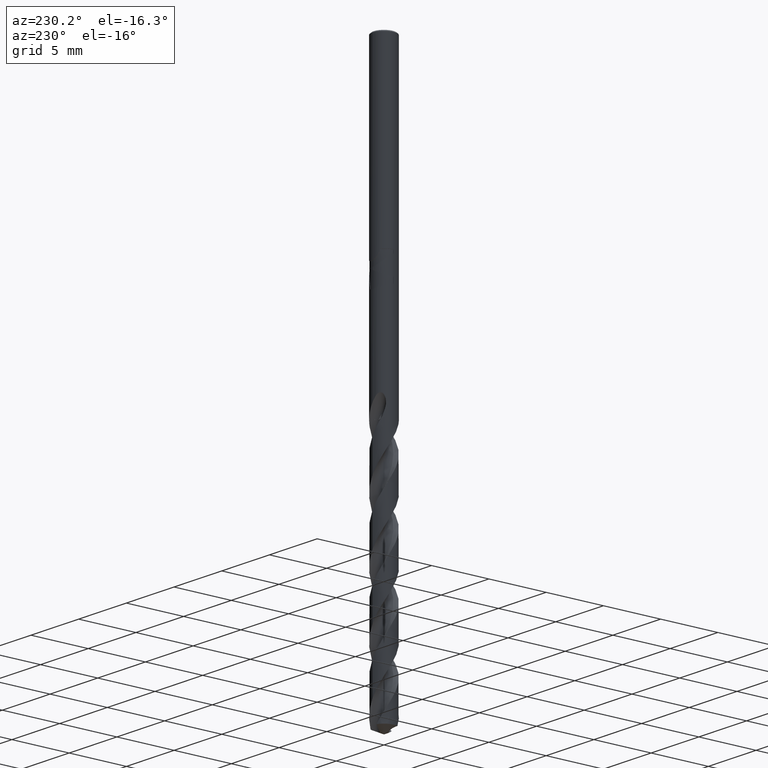
[diagram: clean part render]
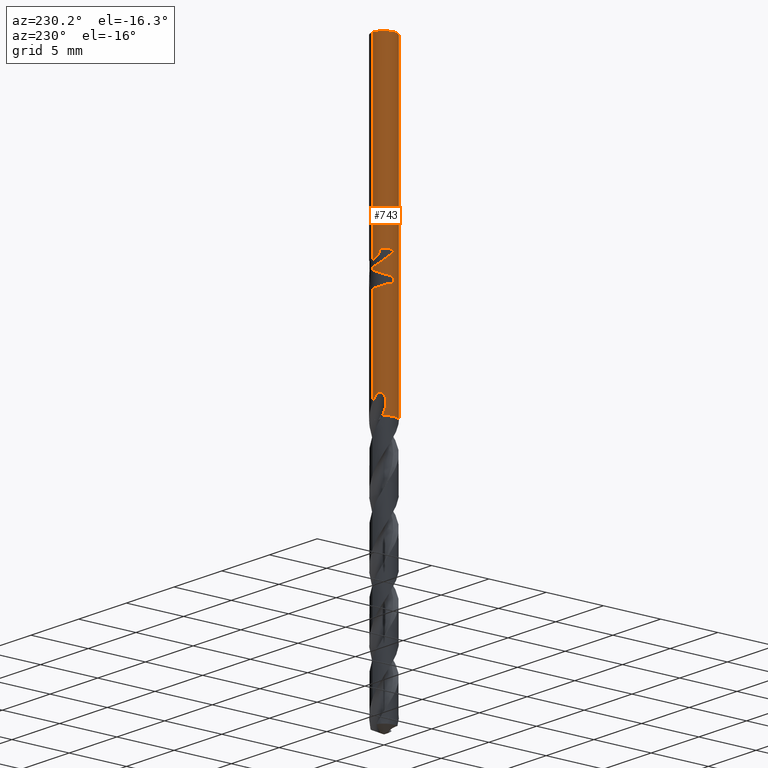
[diagram: same view with one face highlighted and labeled with its STEP entity id]
A machine part, auxiliary view. The second image highlights one B-rep face of the part: STEP entity #743.
In plain terms, the highlighted cylindrical surface (edge-blend (fillet) strip) has radius 1 mm, axis along (-0, -0, 1).
Its self-contained STEP definition (entity closure, byte-faithful):
#289=VERTEX_POINT('',#820);
#305=VERTEX_POINT('',#836);
#311=EDGE_CURVE('',#785,#729,#842,.T.);
#389=EDGE_CURVE('',#583,#305,#926,.T.);
#395=EDGE_CURVE('',#741,#785,#932,.T.);
#409=EDGE_CURVE('',#417,#593,#950,.T.);
#417=VERTEX_POINT('',#959);
#421=VERTEX_POINT('',#963);
#461=EDGE_CURVE('',#687,#289,#1007,.T.);
#467=EDGE_CURVE('',#305,#599,#1013,.T.);
#495=VERTEX_POINT('',#1043);
#509=EDGE_CURVE('',#519,#741,#1058,.T.);
#511=VERTEX_POINT('',#1060);
#519=VERTEX_POINT('',#1069);
#521=EDGE_CURVE('',#587,#421,#1071,.T.);
#533=EDGE_CURVE('',#583,#729,#1085,.T.);
#565=VERTEX_POINT('',#1119);
#583=VERTEX_POINT('',#1140);
#587=VERTEX_POINT('',#1145);
#593=VERTEX_POINT('',#1152);
#599=VERTEX_POINT('',#1159);
#625=EDGE_CURVE('',#511,#495,#1187,.T.);
#633=EDGE_CURVE('',#495,#699,#1195,.T.);
#647=EDGE_CURVE('',#593,#519,#1211,.T.);
#671=EDGE_CURVE('',#599,#587,#1237,.T.);
#687=VERTEX_POINT('',#1254);
#699=VERTEX_POINT('',#1267);
#709=EDGE_CURVE('',#565,#417,#1278,.T.);
#727=EDGE_CURVE('',#421,#511,#1299,.T.);
#729=VERTEX_POINT('',#1301);
#741=VERTEX_POINT('',#1313);
#743=ADVANCED_FACE('',(#1315),#1316,.T.);
#745=EDGE_CURVE('',#699,#687,#1318,.T.);
#785=VERTEX_POINT('',#1361);
#787=EDGE_CURVE('',#289,#565,#1363,.T.);
#820=CARTESIAN_POINT('',(0.0,1.0,-16.5000801551881));
#836=CARTESIAN_POINT('',(3.64769493907055E-013,-1.0,-25.9420152279177));
#842=B_SPLINE_CURVE_WITH_KNOTS('',3,(#1640,#1641,#1642,#1643),.UNSPECIFIED.,.F.,.F.,(4,4),(0.0,0.569458635064391),.UNSPECIFIED.);
#926=B_SPLINE_CURVE_WITH_KNOTS('',3,(#2273,#2274,#2275,#2276,#2277,#2278,#2279,#2280,#2281,#2282,#2283,#2284,#2285,#2286,#2287,#2288,#2289,#2290,#2291,#2292,#2293,#2294,#2295,#2296,#2297,#2298,#2299,#2300),.UNSPECIFIED.,.F.,.F.,(4,2,2,2,2,2,2,2,2,2,2,2,2,4),(0.0,0.486315119149955,0.753502227558083,0.996053073942909,1.27815984182243,1.61675895999867,1.90796937706702,2.04078048043294,2.13789516683883,2.22982424761421,2.34648706572778,2.51720800066213,2.75988064639899,3.03538732581387),.UNSPECIFIED.);
#932=B_SPLINE_CURVE_WITH_KNOTS('',3,(#2309,#2310,#2311,#2312,#2313,#2314,#2315,#2316,#2317,#2318,#2319,#2320,#2321,#2322,#2323,#2324,#2325,#2326,#2327,#2328,#2329,#2330,#2331,#2332,#2333,#2334,#2335,#2336),.UNSPECIFIED.,.F.,.F.,(4,2,2,2,2,2,2,2,2,2,2,2,2,4),(0.0,0.486315119149953,0.753502227558069,0.996053073942924,1.27815984182254,1.61675895999886,1.90796937706729,2.04078048043324,2.13789516683916,2.22982424761455,2.34648706572807,2.51720800066145,2.75988064639575,3.03538732580798),.UNSPECIFIED.);
#950=LINE('',#2358,#2359);
#959=CARTESIAN_POINT('',(-1.0,0.0,-17.2059077749364));
#963=CARTESIAN_POINT('',(5.06214303679778E-017,1.0,-16.0232688117743));
#1007=B_SPLINE_CURVE_WITH_KNOTS('',3,(#3142,#3143,#3144,#3145,#3146,#3147,#3148,#3149,#3150,#3151,#3152,#3153,#3154,#3155,#3156,#3157,#3158,#3159,#3160,#3161,#3162,#3163,#3164),.UNSPECIFIED.,.F.,.F.,(4,3,2,2,2,2,2,2,2,2,4),(-0.137157507978025,0.0,0.137157507978026,0.274315015956052,0.548630031912103,0.964173413406938,1.37971679490177,1.68730627921483,1.99489576352788,2.33088352547496,2.66687128742204),.UNSPECIFIED.);
#1013=LINE('',#3171,#3172);
#1043=CARTESIAN_POINT('',(-0.562333990228013,0.82691020276342,-15.3171221986971));
#1058=LINE('',#3465,#3466);
#1060=CARTESIAN_POINT('',(-0.486378944383072,0.873747974224136,-15.6432837483005));
#1069=CARTESIAN_POINT('',(1.0146208194845E-016,1.0,-18.0310253601033));
#1071=LINE('',#3500,#3501);
#1085=CIRCLE('',#3716,1.0);
#1119=CARTESIAN_POINT('',(-1.22460635382238E-016,1.0,-16.7128911336578));
#1140=CARTESIAN_POINT('',(-0.634841489332144,-0.772642403329344,-27.0));
#1145=CARTESIAN_POINT('',(0.0,1.0,-0.100000000000001));
#1152=CARTESIAN_POINT('',(-1.0,0.0,-17.7096916079355));
#1159=CARTESIAN_POINT('',(1.22460635382238E-016,-1.0,-0.100000000000001));
#1187=B_SPLINE_CURVE_WITH_KNOTS('',3,(#6421,#6422,#6423,#6424,#6425,#6426,#6427,#6428,#6429,#6430,#6431,#6432,#6433,#6434,#6435,#6436,#6437,#6438,#6439,#6440,#6441,#6442,#6443,#6444,#6445,#6446,#6447,#6448,#6449,#6450,#6451),.UNSPECIFIED.,.F.,.F.,(4,2,2,3,2,2,2,2,2,2,2,2,2,2,4),(-0.607233525241759,-0.303616762620879,-0.151808381310439,0.0,0.15180838131044,0.30361676262088,0.607233525241759,0.912218572818199,1.21720362039464,1.4895999723445,1.76199632429436,2.04336921409699,2.32474210389963,2.60611499370226,2.88748788350489),.UNSPECIFIED.);
#1195=CIRCLE('',#6487,1.0);
#1211=B_SPLINE_CURVE_WITH_KNOTS('',3,(#6526,#6527,#6528,#6529,#6530,#6531,#6532,#6533,#6534,#6535,#6536,#6537,#6538,#6539,#6540,#6541,#6542),.UNSPECIFIED.,.F.,.F.,(4,3,2,2,2,2,2,4),(-0.19504411259458,0.0,0.19504411259458,0.39008822518916,0.780176450378319,1.166317916099,1.55245938181969,1.94231222037545),.UNSPECIFIED.);
#1237=CIRCLE('',#6940,1.0);
#1254=CARTESIAN_POINT('',(-1.0,0.0,-15.6123787413622));
#1267=CARTESIAN_POINT('',(-1.0,0.0,-15.3171221986971));
#1278=ELLIPSE('',#7392,1.11492843204286,1.0);
#1299=B_SPLINE_CURVE_WITH_KNOTS('',3,(#7840,#7841,#7842,#7843,#7844,#7845,#7846,#7847,#7848,#7849,#7850,#7851,#7852,#7853,#7854,#7855,#7856,#7857,#7858,#7859,#7860,#7861,#7862,#7863,#7864,#7865,#7866,#7867,#7868,#7869,#7870),.UNSPECIFIED.,.F.,.F.,(4,2,2,3,2,2,2,2,2,2,2,2,2,2,4),(-0.607233525241759,-0.303616762620879,-0.151808381310439,0.0,0.15180838131044,0.30361676262088,0.607233525241759,0.912218572818199,1.21720362039464,1.4895999723445,1.76199632429436,2.04336921409699,2.32474210389963,2.60611499370226,2.88748788350489),.UNSPECIFIED.);
#1301=CARTESIAN_POINT('',(-0.696395247789617,0.717658455573428,-27.0));
#1313=CARTESIAN_POINT('',(-3.65657672326755E-013,1.0,-25.9420152279177));
#1315=FACE_OUTER_BOUND('',#7988,.T.);
#1316=CYLINDRICAL_SURFACE('',#7989,1.0);
#1318=LINE('',#7992,#7993);
#1361=CARTESIAN_POINT('',(-0.813642163312234,0.581366003547324,-26.4574197756242));
#1363=LINE('',#8091,#8092);
#1640=CARTESIAN_POINT('',(-0.813642163364854,0.581366003473684,-26.4574197756531));
#1641=CARTESIAN_POINT('',(-0.781698120610794,0.62607281449761,-26.6391127552994));
#1642=CARTESIAN_POINT('',(-0.743260976586598,0.672181292216749,-26.8218533031689));
#1643=CARTESIAN_POINT('',(-0.696395247789617,0.717658455573428,-27.0));
#2273=CARTESIAN_POINT('',(-0.634841489332145,-0.772642403329344,-27.0));
#2274=CARTESIAN_POINT('',(-0.569063042017873,-0.826689252530226,-26.8620500893008));
#2275=CARTESIAN_POINT('',(-0.49362829051234,-0.874633404089495,-26.7332556092569));
#2276=CARTESIAN_POINT('',(-0.362092801182732,-0.933541954259275,-26.5178770775166));
#2277=CARTESIAN_POINT('',(-0.314580386880739,-0.950550046193102,-26.4417865859912));
#2278=CARTESIAN_POINT('',(-0.222521761345376,-0.975986377041126,-26.2943596287175));
#2279=CARTESIAN_POINT('',(-0.178375337692277,-0.984973036864506,-26.2236925386448));
#2280=CARTESIAN_POINT('',(-0.0827625185949405,-0.997918774791236,-26.0713148020854));
#2281=CARTESIAN_POINT('',(-0.0304842963187713,-1.00092673578298,-25.9883933091746));
#2282=CARTESIAN_POINT('',(0.0855723170221471,-0.998342364501833,-25.8111323335177));
#2283=CARTESIAN_POINT('',(0.154409605646612,-0.990700443091022,-25.7102704916496));
#2284=CARTESIAN_POINT('',(0.286703096553658,-0.960074782067612,-25.5447567655431));
#2285=CARTESIAN_POINT('',(0.359504089173723,-0.936937353257582,-25.4644634701456));
#2286=CARTESIAN_POINT('',(0.469917831565921,-0.883545652625182,-25.3889707559942));
#2287=CARTESIAN_POINT('',(0.50662148531637,-0.863304491822586,-25.3702412765686));
#2288=CARTESIAN_POINT('',(0.57094354101037,-0.821627317932716,-25.3558724674693));
#2289=CARTESIAN_POINT('',(0.597329698140652,-0.802644509769649,-25.3556222950202));
#2290=CARTESIAN_POINT('',(0.646478662183727,-0.763543132494086,-25.3682722977457));
#2291=CARTESIAN_POINT('',(0.667975306297854,-0.744656659894225,-25.3801191841257));
#2292=CARTESIAN_POINT('',(0.711726031081877,-0.703264339849075,-25.4171744441095));
#2293=CARTESIAN_POINT('',(0.731967618640897,-0.681812491565128,-25.444531566887));
#2294=CARTESIAN_POINT('',(0.773429215520865,-0.634971026278083,-25.519440448554));
#2295=CARTESIAN_POINT('',(0.793244481378834,-0.609464356749814,-25.5750020342022));
#2296=CARTESIAN_POINT('',(0.830491892501607,-0.55826918115183,-25.7304348067894));
#2297=CARTESIAN_POINT('',(0.843947813018679,-0.53647839181785,-25.8411252191962));
#2298=CARTESIAN_POINT('',(0.852491490643159,-0.522811338154955,-26.1055324757325));
#2299=CARTESIAN_POINT('',(0.846359061382859,-0.535577554342139,-26.2713376298635));
#2300=CARTESIAN_POINT('',(0.813642163312235,-0.581366003547325,-26.4574197756242));
#2309=CARTESIAN_POINT('',(0.634841489332145,0.772642403329344,-27.0));
#2310=CARTESIAN_POINT('',(0.569063042017873,0.826689252530226,-26.8620500893008));
#2311=CARTESIAN_POINT('',(0.493628290512342,0.874633404089495,-26.7332556092569));
#2312=CARTESIAN_POINT('',(0.362092801182733,0.933541954259275,-26.5178770775166));
#2313=CARTESIAN_POINT('',(0.314580386880741,0.950550046193102,-26.4417865859912));
#2314=CARTESIAN_POINT('',(0.222521761345367,0.975986377041129,-26.2943596287174));
#2315=CARTESIAN_POINT('',(0.178375337692258,0.984973036864508,-26.2236925386447));
#2316=CARTESIAN_POINT('',(0.0827625185949509,0.997918774791234,-26.0713148020854));
#2317=CARTESIAN_POINT('',(0.0304842963187761,1.00092673578298,-25.9883933091746));
#2318=CARTESIAN_POINT('',(-0.0855723170221472,0.998342364501833,-25.8111323335177));
#2319=CARTESIAN_POINT('',(-0.154409605646612,0.990700443091022,-25.7102704916496));
#2320=CARTESIAN_POINT('',(-0.286703096553659,0.960074782067612,-25.5447567655431));
#2321=CARTESIAN_POINT('',(-0.359504089173723,0.936937353257582,-25.4644634701456));
#2322=CARTESIAN_POINT('',(-0.469917831565922,0.883545652625182,-25.3889707559942));
#2323=CARTESIAN_POINT('',(-0.50662148531637,0.863304491822586,-25.3702412765686));
#2324=CARTESIAN_POINT('',(-0.570943541010371,0.821627317932715,-25.3558724674693));
#2325=CARTESIAN_POINT('',(-0.597329698140652,0.802644509769648,-25.3556222950202));
#2326=CARTESIAN_POINT('',(-0.64647866218372,0.763543132494091,-25.3682722977457));
#2327=CARTESIAN_POINT('',(-0.667975306297842,0.744656659894236,-25.3801191841257));
#2328=CARTESIAN_POINT('',(-0.711726031081881,0.70326433984907,-25.4171744441095));
#2329=CARTESIAN_POINT('',(-0.731967618640905,0.68181249156512,-25.444531566887));
#2330=CARTESIAN_POINT('',(-0.773429215520723,0.634971026278244,-25.5194404485537));
#2331=CARTESIAN_POINT('',(-0.793244481378741,0.609464356749943,-25.5750020342018));
#2332=CARTESIAN_POINT('',(-0.830491892501633,0.558269181151796,-25.7304348067895));
#2333=CARTESIAN_POINT('',(-0.843947813018682,0.536478391817844,-25.8411252191964));
#2334=CARTESIAN_POINT('',(-0.852491490643158,0.522811338154955,-26.1055324757325));
#2335=CARTESIAN_POINT('',(-0.846359061382859,0.535577554342139,-26.2713376298635));
#2336=CARTESIAN_POINT('',(-0.813642163312235,0.581366003547325,-26.4574197756242));
#2358=CARTESIAN_POINT('',(-1.0,0.0,-17.4607460005526));
#2359=VECTOR('',#8407,1.0);
#3142=CARTESIAN_POINT('',(-0.991868233804212,-0.127269033036765,-15.6432304080176));
#3143=CARTESIAN_POINT('',(-0.996991542825211,-0.0873405548822711,-15.6248045831465));
#3144=CARTESIAN_POINT('',(-1.0,-0.0457191693260084,-15.6123787413622));
#3145=CARTESIAN_POINT('',(-1.0,0.0,-15.6123787413622));
#3146=CARTESIAN_POINT('',(-1.0,0.0457191693260086,-15.6123787413622));
#3147=CARTESIAN_POINT('',(-0.996991542825211,0.0873405548822711,-15.6248045831465));
#3148=CARTESIAN_POINT('',(-0.986744924783327,0.167197511190992,-15.6616562328894));
#3149=CARTESIAN_POINT('',(-0.979434144534593,0.205415348052975,-15.6861002379071));
#3150=CARTESIAN_POINT('',(-0.951341400725161,0.317646868302498,-15.7672870426517));
#3151=CARTESIAN_POINT('',(-0.924020105583603,0.388742546209082,-15.8312206041969));
#3152=CARTESIAN_POINT('',(-0.844278031743052,0.546366797465065,-15.9784418218004));
#3153=CARTESIAN_POINT('',(-0.776369883975864,0.641646115756596,-16.0749473668852));
#3154=CARTESIAN_POINT('',(-0.602121978922889,0.807408812091898,-16.2494661213731));
#3155=CARTESIAN_POINT('',(-0.495571162281771,0.877632351185902,-16.3275152387594));
#3156=CARTESIAN_POINT('',(-0.292974692954151,0.960645039763194,-16.4283413922073));
#3157=CARTESIAN_POINT('',(-0.190761951173311,0.987423878945487,-16.4650225267122));
#3158=CARTESIAN_POINT('',(0.0219808973918171,1.00544163480209,-16.507634003032));
#3159=CARTESIAN_POINT('',(0.132551011445553,0.996439830889215,-16.5134659835241));
#3160=CARTESIAN_POINT('',(0.340721948365817,0.94677963278928,-16.498632823894));
#3161=CARTESIAN_POINT('',(0.449793780127788,0.900432097113985,-16.4747387783549));
#3162=CARTESIAN_POINT('',(0.641563561285496,0.775556910410664,-16.4062859546221));
#3163=CARTESIAN_POINT('',(0.724482186930116,0.697113908182539,-16.3621919706298));
#3164=CARTESIAN_POINT('',(0.788520594587301,0.615008351091015,-16.3209506554054));
#3171=CARTESIAN_POINT('',(1.22460635382238E-016,-1.0,-23.5));
#3172=VECTOR('',#8471,1.0);
#3465=CARTESIAN_POINT('',(-1.22460635382238E-016,1.0,-23.5));
#3466=VECTOR('',#8510,1.0);
#3500=CARTESIAN_POINT('',(-1.22460635382238E-016,1.0,-23.5));
#3501=VECTOR('',#8519,1.0);
#3716=AXIS2_PLACEMENT_3D('',#8537,#8538,#8539);
#6421=CARTESIAN_POINT('',(0.673478773298645,0.739206562414155,-14.8221013126891));
#6422=CARTESIAN_POINT('',(0.732898512196537,0.685070229084017,-14.8835921493418));
#6423=CARTESIAN_POINT('',(0.784035818772585,0.62377271486409,-14.9592044724041));
#6424=CARTESIAN_POINT('',(0.837072103961167,0.547961151775005,-15.0855800820537));
#6425=CARTESIAN_POINT('',(0.850964192131077,0.525559955949891,-15.1298681551343));
#6426=CARTESIAN_POINT('',(0.870113898944855,0.493209009232316,-15.2225766796322));
#6427=CARTESIAN_POINT('',(0.875400981188567,0.483397478410981,-15.2710392188166));
#6428=CARTESIAN_POINT('',(0.875400981188567,0.483397478410981,-15.3216420125868));
#6429=CARTESIAN_POINT('',(0.875400981188567,0.483397478410981,-15.3722448063569));
#6430=CARTESIAN_POINT('',(0.870113898944855,0.493209009232316,-15.4207073455414));
#6431=CARTESIAN_POINT('',(0.850964192131077,0.52555995594989,-15.5134158700393));
#6432=CARTESIAN_POINT('',(0.837072103961168,0.547961151775003,-15.5577039431199));
#6433=CARTESIAN_POINT('',(0.784035818772587,0.623772714864088,-15.6840795527694));
#6434=CARTESIAN_POINT('',(0.732898512196537,0.685070229084017,-15.7596918758318));
#6435=CARTESIAN_POINT('',(0.613791252299082,0.79358686755206,-15.8829506648866));
#6436=CARTESIAN_POINT('',(0.536550060182283,0.849736898708803,-15.9395969520149));
#6437=CARTESIAN_POINT('',(0.358230432856478,0.93894078865622,-16.0184933615078));
#6438=CARTESIAN_POINT('',(0.256934968912869,0.97176104029934,-16.0405166027747));
#6439=CARTESIAN_POINT('',(0.0668468131160956,1.00188618253226,-16.0405166027747));
#6440=CARTESIAN_POINT('',(-0.0291729907235004,1.00347676559166,-16.0225778316884));
#6441=CARTESIAN_POINT('',(-0.204783002825692,0.982792247679803,-15.9503317442107));
#6442=CARTESIAN_POINT('',(-0.284466038399353,0.961010291643699,-15.8961097710298));
#6443=CARTESIAN_POINT('',(-0.411816290198985,0.913875241964301,-15.7710754747411));
#6444=CARTESIAN_POINT('',(-0.467748305765433,0.88493728473904,-15.6909252580766));
#6445=CARTESIAN_POINT('',(-0.543025225108172,0.840848585319699,-15.5132567961665));
#6446=CARTESIAN_POINT('',(-0.562348199187247,0.826900539890295,-15.4154329758543));
#6447=CARTESIAN_POINT('',(-0.562348199187247,0.826900539890295,-15.2278510493192));
#6448=CARTESIAN_POINT('',(-0.543025225108173,0.840848585319698,-15.1300272290071));
#6449=CARTESIAN_POINT('',(-0.467748305765435,0.88493728473904,-14.952358767097));
#6450=CARTESIAN_POINT('',(-0.411816290198985,0.913875241964301,-14.8722085504325));
#6451=CARTESIAN_POINT('',(-0.34710899758635,0.937824793761926,-14.808678006266));
#6487=AXIS2_PLACEMENT_3D('',#8664,#8665,#8666);
#6526=CARTESIAN_POINT('',(-0.980444819587482,-0.196794196418672,-17.7240035705323));
#6527=CARTESIAN_POINT('',(-0.993565563062151,-0.131425574063137,-17.7145499063757));
#6528=CARTESIAN_POINT('',(-1.0,-0.0650147041981933,-17.7096916079355));
#6529=CARTESIAN_POINT('',(-1.0,0.0,-17.7096916079355));
#6530=CARTESIAN_POINT('',(-1.0,0.0650147041981933,-17.7096916079355));
#6531=CARTESIAN_POINT('',(-0.993565563062151,0.131425574063137,-17.7145499063757));
#6532=CARTESIAN_POINT('',(-0.967324076112812,0.262162818774206,-17.733457234689));
#6533=CARTESIAN_POINT('',(-0.947530815459635,0.326498668616294,-17.747459854512));
#6534=CARTESIAN_POINT('',(-0.870227269632897,0.510264153789291,-17.7981758412044));
#6535=CARTESIAN_POINT('',(-0.793890669672503,0.620514468200863,-17.8433674785199));
#6536=CARTESIAN_POINT('',(-0.619652273446457,0.794369949064209,-17.9231378507274));
#6537=CARTESIAN_POINT('',(-0.509393531502069,0.870757232476645,-17.9636894408171));
#6538=CARTESIAN_POINT('',(-0.264011144697287,0.973651943067932,-18.0190349224756));
#6539=CARTESIAN_POINT('',(-0.128694303528194,1.0,-18.0332668304406));
#6540=CARTESIAN_POINT('',(0.129931240206963,1.0,-18.0287623460241));
#6541=CARTESIAN_POINT('',(0.265840915073126,0.973193360312368,-18.0095124995587));
#6542=CARTESIAN_POINT('',(0.388686445156455,0.921370092499012,-17.9769707233872));
#6940=AXIS2_PLACEMENT_3D('',#8730,#8731,#8732);
#7392=AXIS2_PLACEMENT_3D('',#8767,#8768,#8769);
#7840=CARTESIAN_POINT('',(0.673478773298645,0.739206562414155,-14.8221013126891));
#7841=CARTESIAN_POINT('',(0.732898512196537,0.685070229084017,-14.8835921493418));
#7842=CARTESIAN_POINT('',(0.784035818772585,0.62377271486409,-14.9592044724041));
#7843=CARTESIAN_POINT('',(0.837072103961167,0.547961151775005,-15.0855800820537));
#7844=CARTESIAN_POINT('',(0.850964192131077,0.525559955949891,-15.1298681551343));
#7845=CARTESIAN_POINT('',(0.870113898944855,0.493209009232316,-15.2225766796322));
#7846=CARTESIAN_POINT('',(0.875400981188567,0.483397478410981,-15.2710392188166));
#7847=CARTESIAN_POINT('',(0.875400981188567,0.483397478410981,-15.3216420125868));
#7848=CARTESIAN_POINT('',(0.875400981188567,0.483397478410981,-15.3722448063569));
#7849=CARTESIAN_POINT('',(0.870113898944855,0.493209009232316,-15.4207073455414));
#7850=CARTESIAN_POINT('',(0.850964192131077,0.52555995594989,-15.5134158700393));
#7851=CARTESIAN_POINT('',(0.837072103961168,0.547961151775003,-15.5577039431199));
#7852=CARTESIAN_POINT('',(0.784035818772587,0.623772714864088,-15.6840795527694));
#7853=CARTESIAN_POINT('',(0.732898512196537,0.685070229084017,-15.7596918758318));
#7854=CARTESIAN_POINT('',(0.613791252299082,0.79358686755206,-15.8829506648866));
#7855=CARTESIAN_POINT('',(0.536550060182283,0.849736898708803,-15.9395969520149));
#7856=CARTESIAN_POINT('',(0.358230432856478,0.93894078865622,-16.0184933615078));
#7857=CARTESIAN_POINT('',(0.256934968912869,0.97176104029934,-16.0405166027747));
#7858=CARTESIAN_POINT('',(0.0668468131160956,1.00188618253226,-16.0405166027747));
#7859=CARTESIAN_POINT('',(-0.0291729907235004,1.00347676559166,-16.0225778316884));
#7860=CARTESIAN_POINT('',(-0.204783002825692,0.982792247679803,-15.9503317442107));
#7861=CARTESIAN_POINT('',(-0.284466038399353,0.961010291643699,-15.8961097710298));
#7862=CARTESIAN_POINT('',(-0.411816290198985,0.913875241964301,-15.7710754747411));
#7863=CARTESIAN_POINT('',(-0.467748305765433,0.88493728473904,-15.6909252580766));
#7864=CARTESIAN_POINT('',(-0.543025225108172,0.840848585319699,-15.5132567961665));
#7865=CARTESIAN_POINT('',(-0.562348199187247,0.826900539890295,-15.4154329758543));
#7866=CARTESIAN_POINT('',(-0.562348199187247,0.826900539890295,-15.2278510493192));
#7867=CARTESIAN_POINT('',(-0.543025225108173,0.840848585319698,-15.1300272290071));
#7868=CARTESIAN_POINT('',(-0.467748305765435,0.88493728473904,-14.952358767097));
#7869=CARTESIAN_POINT('',(-0.411816290198985,0.913875241964301,-14.8722085504325));
#7870=CARTESIAN_POINT('',(-0.34710899758635,0.937824793761926,-14.808678006266));
#7988=EDGE_LOOP('',(#8802,#8803,#8804,#8805,#8806,#8807,#8808,#8809,#8810,#8811,#8812,#8813,#8814,#8815,#8816,#8817,#8818));
#7989=AXIS2_PLACEMENT_3D('',#8819,#8820,#8821);
#7992=CARTESIAN_POINT('',(-1.0,0.0,-15.5078657761205));
#7993=VECTOR('',#8822,1.0);
#8091=CARTESIAN_POINT('',(-1.22460635382238E-016,1.0,-23.5));
#8092=VECTOR('',#8860,1.0);
#8407=DIRECTION('',(0.0,0.0,-1.0));
#8471=DIRECTION('',(-0.0,-0.0,1.0));
#8510=DIRECTION('',(0.0,0.0,-1.0));
#8519=DIRECTION('',(0.0,0.0,-1.0));
#8537=CARTESIAN_POINT('',(0.0,0.0,-27.0));
#8538=DIRECTION('',(0.0,0.0,-1.0));
#8539=DIRECTION('',(0.0,1.0,0.0));
#8664=CARTESIAN_POINT('',(0.0,0.0,-15.3171221986971));
#8665=DIRECTION('',(0.0,-0.0,1.0));
#8666=DIRECTION('',(0.0,1.0,0.0));
#8730=CARTESIAN_POINT('',(0.0,0.0,-0.100000000000001));
#8731=DIRECTION('',(0.0,0.0,-1.0));
#8732=DIRECTION('',(0.0,1.0,0.0));
#8767=CARTESIAN_POINT('',(0.0,0.0,-16.7128911336578));
#8768=DIRECTION('',(-0.442195774284071,0.0,0.896918556617774));
#8769=DIRECTION('',(0.896918556617774,-0.0,0.442195774284071));
#8802=ORIENTED_EDGE('',*,*,#521,.T.);
#8803=ORIENTED_EDGE('',*,*,#727,.T.);
#8804=ORIENTED_EDGE('',*,*,#625,.T.);
#8805=ORIENTED_EDGE('',*,*,#633,.T.);
#8806=ORIENTED_EDGE('',*,*,#745,.T.);
#8807=ORIENTED_EDGE('',*,*,#461,.T.);
#8808=ORIENTED_EDGE('',*,*,#787,.T.);
#8809=ORIENTED_EDGE('',*,*,#709,.T.);
#8810=ORIENTED_EDGE('',*,*,#409,.T.);
#8811=ORIENTED_EDGE('',*,*,#647,.T.);
#8812=ORIENTED_EDGE('',*,*,#509,.T.);
#8813=ORIENTED_EDGE('',*,*,#395,.T.);
#8814=ORIENTED_EDGE('',*,*,#311,.T.);
#8815=ORIENTED_EDGE('',*,*,#533,.F.);
#8816=ORIENTED_EDGE('',*,*,#389,.T.);
#8817=ORIENTED_EDGE('',*,*,#467,.T.);
#8818=ORIENTED_EDGE('',*,*,#671,.T.);
#8819=CARTESIAN_POINT('',(0.0,0.0,-23.5));
#8820=DIRECTION('',(-0.0,-0.0,1.0));
#8821=DIRECTION('',(0.0,1.0,0.0));
#8822=DIRECTION('',(0.0,0.0,-1.0));
#8860=DIRECTION('',(0.0,0.0,-1.0));